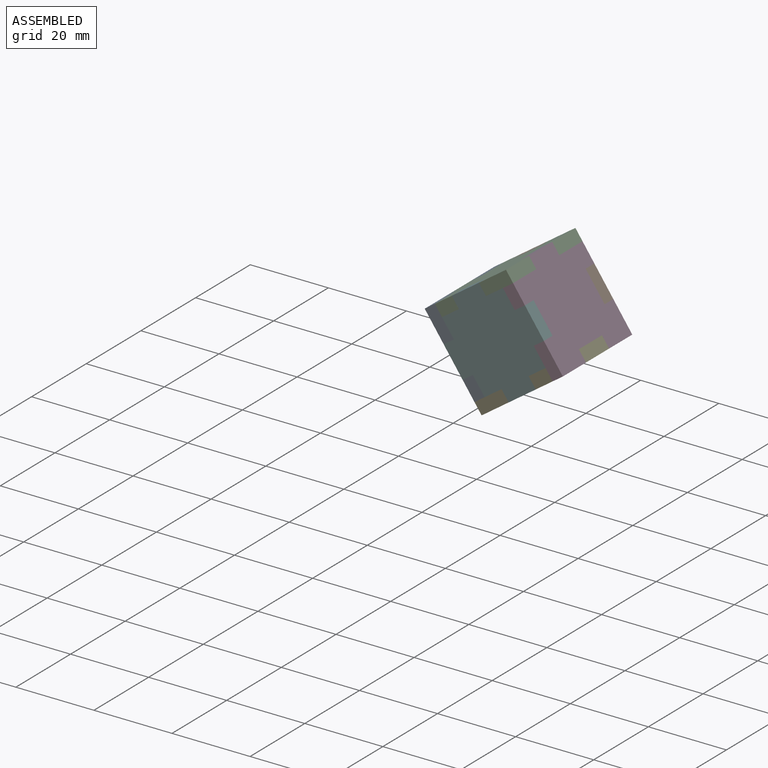
[diagram: assembled view]
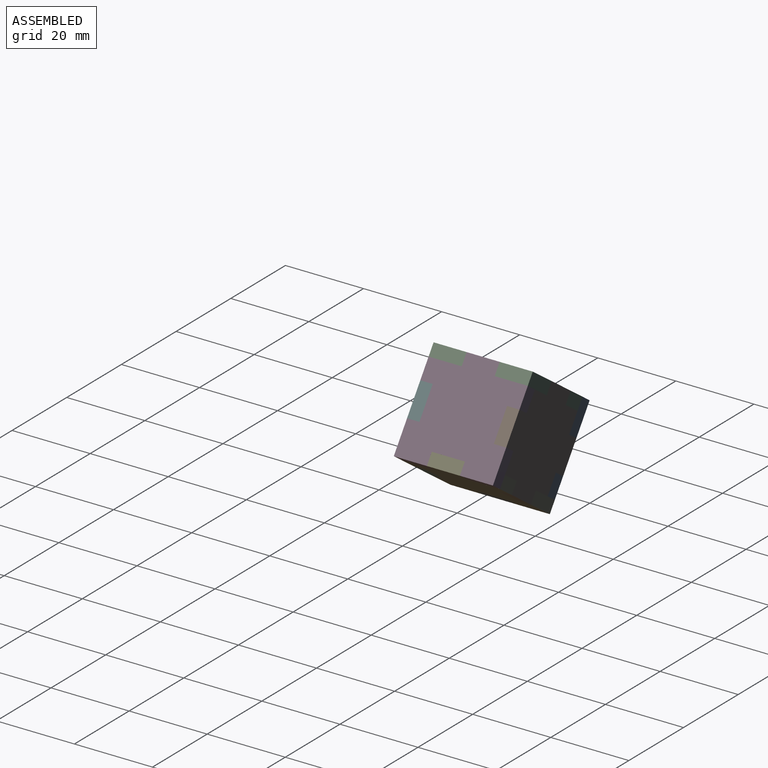
[diagram: assembled view, second angle]
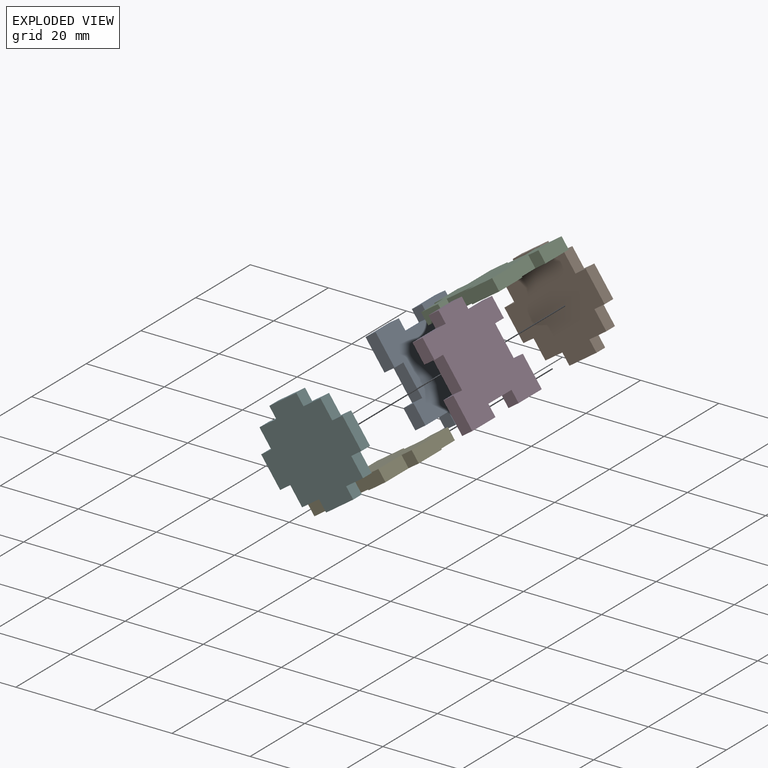
[diagram: exploded view]
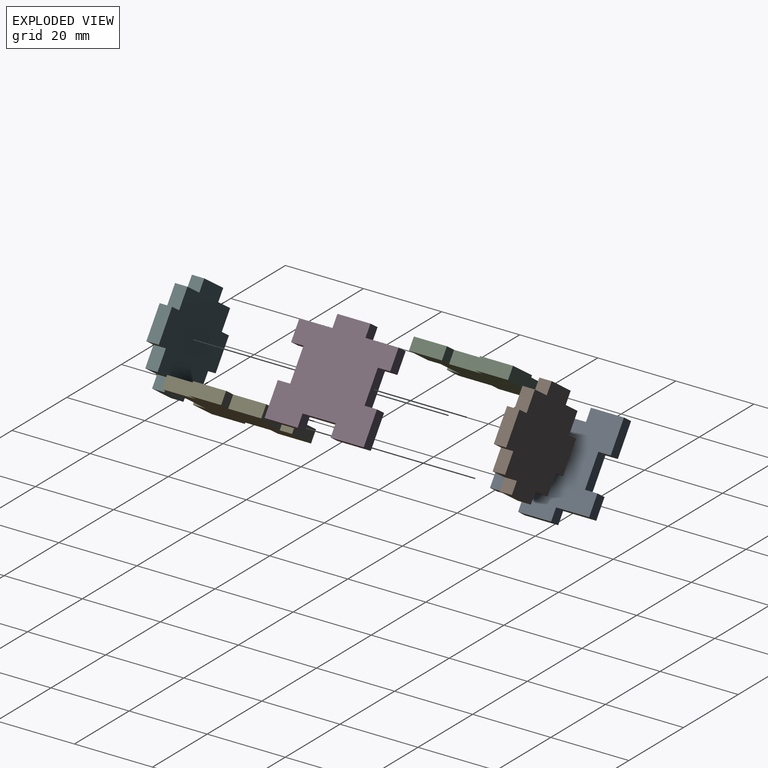
[diagram: exploded view, second angle]
ASSEMBLY  parts=6 mates=5
PART A: 22 faces, bbox 25.4x25.4x3.2 mm
  f0: plane 3.18x3.18mm, normal (0,-1,0), area 10.1mm2, adj f1,f19,f20,f21
  f1: plane 8.47x3.18mm, normal (1,0,0), area 26.9mm2, adj f0,f2,f20,f21
  f2: plane 3.18x3.18mm, normal (0,1,0), area 10.1mm2, adj f1,f3,f20,f21
  f3: plane 8.47x3.18mm, normal (1,0,0), area 26.9mm2, adj f2,f4,f20,f21
  f4: plane 5.29x3.18mm, normal (0,1,0), area 16.8mm2, adj f3,f5,f20,f21
  f5: plane 3.18x3.18mm, normal (-1,0,0), area 10.1mm2, adj f4,f6,f20,f21
  f6: plane 8.47x3.18mm, normal (0,1,0), area 26.9mm2, adj f5,f7,f20,f21
  f7: plane 3.18x3.18mm, normal (1,0,0), area 10.1mm2, adj f6,f8,f20,f21
  f8: plane 8.47x3.18mm, normal (0,1,0), area 26.9mm2, adj f7,f9,f20,f21
  f9: plane 8.47x3.18mm, normal (-1,0,0), area 26.9mm2, adj f8,f10,f20,f21
  f10: plane 3.18x3.18mm, normal (0,-1,0), area 10.1mm2, adj f9,f11,f20,f21
  f11: plane 8.47x3.18mm, normal (-1,0,0), area 26.9mm2, adj f10,f12,f20,f21
  f12: plane 3.18x3.18mm, normal (0,1,0), area 10.1mm2, adj f11,f13,f20,f21
  f13: plane 8.47x3.18mm, normal (-1,0,0), area 26.9mm2, adj f12,f14,f20,f21
  f14: plane 8.47x3.18mm, normal (0,-1,0), area 26.9mm2, adj f13,f15,f20,f21
  f15: plane 3.18x3.18mm, normal (1,0,0), area 10.1mm2, adj f14,f16,f20,f21
  f16: plane 8.47x3.18mm, normal (0,-1,0), area 26.9mm2, adj f15,f17,f20,f21
  f17: plane 3.18x3.18mm, normal (-1,0,0), area 10.1mm2, adj f16,f18,f20,f21
  f18: plane 5.29x3.18mm, normal (0,-1,0), area 16.8mm2, adj f17,f19,f20,f21
  f19: plane 8.47x3.18mm, normal (1,0,0), area 26.9mm2, adj f0,f18,f20,f21
  f20: plane 25.4x25.4mm, normal (0,0,1), area 510.8mm2, adj f0,f1,f2,f3,f4,f5,f6,f7
  f21: plane 25.4x25.4mm, normal (0,0,-1), area 510.8mm2, adj f0,f1,f2,f3,f4,f5,f6,f7
PART B: 22 faces, bbox 25.4x25.4x3.2 mm
  f0: plane 3.18x3.18mm, normal (-1,0,0), area 10.1mm2, adj f1,f19,f20,f21
  f1: plane 8.47x3.18mm, normal (0,-1,0), area 26.9mm2, adj f0,f2,f20,f21
  f2: plane 3.18x3.18mm, normal (1,0,0), area 10.1mm2, adj f1,f3,f20,f21
  f3: plane 5.29x3.18mm, normal (0,-1,0), area 16.8mm2, adj f2,f4,f20,f21
  f4: plane 5.29x3.18mm, normal (1,0,0), area 16.8mm2, adj f3,f5,f20,f21
  f5: plane 3.18x3.18mm, normal (0,-1,0), area 10.1mm2, adj f4,f6,f20,f21
  f6: plane 8.47x3.18mm, normal (1,0,0), area 26.9mm2, adj f5,f7,f20,f21
  f7: plane 3.18x3.18mm, normal (0,1,0), area 10.1mm2, adj f6,f8,f20,f21
  f8: plane 5.29x3.18mm, normal (1,0,0), area 16.8mm2, adj f7,f9,f20,f21
  f9: plane 5.29x3.18mm, normal (0,1,0), area 16.8mm2, adj f8,f10,f20,f21
  f10: plane 3.18x3.18mm, normal (1,0,0), area 10.1mm2, adj f9,f11,f20,f21
  f11: plane 8.47x3.18mm, normal (0,1,0), area 26.9mm2, adj f10,f12,f20,f21
  f12: plane 3.18x3.18mm, normal (-1,0,0), area 10.1mm2, adj f11,f13,f20,f21
  f13: plane 5.29x3.18mm, normal (0,1,0), area 16.8mm2, adj f12,f14,f20,f21
  f14: plane 5.29x3.18mm, normal (-1,0,0), area 16.8mm2, adj f13,f15,f20,f21
  f15: plane 3.18x3.18mm, normal (0,1,0), area 10.1mm2, adj f14,f16,f20,f21
  f16: plane 8.47x3.18mm, normal (-1,0,0), area 26.9mm2, adj f15,f17,f20,f21
  f17: plane 3.18x3.18mm, normal (0,-1,0), area 10.1mm2, adj f16,f18,f20,f21
  f18: plane 5.29x3.18mm, normal (-1,0,0), area 16.8mm2, adj f17,f19,f20,f21
  f19: plane 5.29x3.18mm, normal (0,-1,0), area 16.8mm2, adj f0,f18,f20,f21
  f20: plane 25.4x25.4mm, normal (0,0,1), area 470.4mm2, adj f0,f1,f2,f3,f4,f5,f6,f7
  f21: plane 25.4x25.4mm, normal (0,0,-1), area 470.4mm2, adj f0,f1,f2,f3,f4,f5,f6,f7
PART C: same geometry as A
PART D: same geometry as A
PART E: same geometry as A
PART F: same geometry as B
PLACE A rot(axis=(0,1,0),55deg) t=(-53.44,-5.25,-7.19)mm
PLACE B rot(axis=(-0.35,-0.66,-0.66),141.9deg) t=(-43.03,4.27,0.09)mm
PLACE C rot(axis=(0,1,0),145deg) t=(-50.32,-5.25,10.5)mm
PLACE D rot(axis=(0,-1,0),125deg) t=(-32.63,-5.25,7.38)mm
PLACE E rot(axis=(0,-1,0),35deg) t=(-35.75,-5.25,-10.31)mm
PLACE F rot(axis=(-0.91,-0.29,-0.29),95.2deg) t=(-43.03,-17.95,0.09)mm
MATE fastened C.f19 <-> A.f20  axis (-0.82,0,-0.57) through (-58.12,-17.95,5.03)mm
MATE fastened B.f20 <-> E.f4  axis (0,1,0) through (-32.28,7.45,-7.88)mm
MATE fastened B.f20 <-> C.f4  axis (0,1,0) through (-53.78,7.45,8.07)mm
MATE fastened F.f20 <-> E.f16  axis (0,1,0) through (-39.22,-14.78,-12.74)mm
MATE fastened D.f4 <-> B.f20  axis (0,1,0) through (-35.06,7.45,10.85)mm
